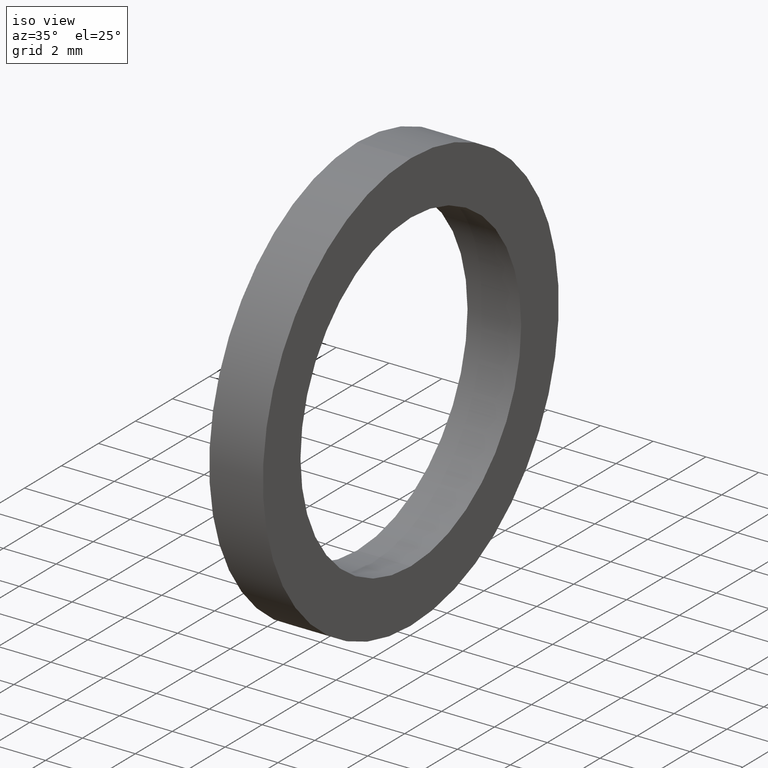
[diagram: clean part render]
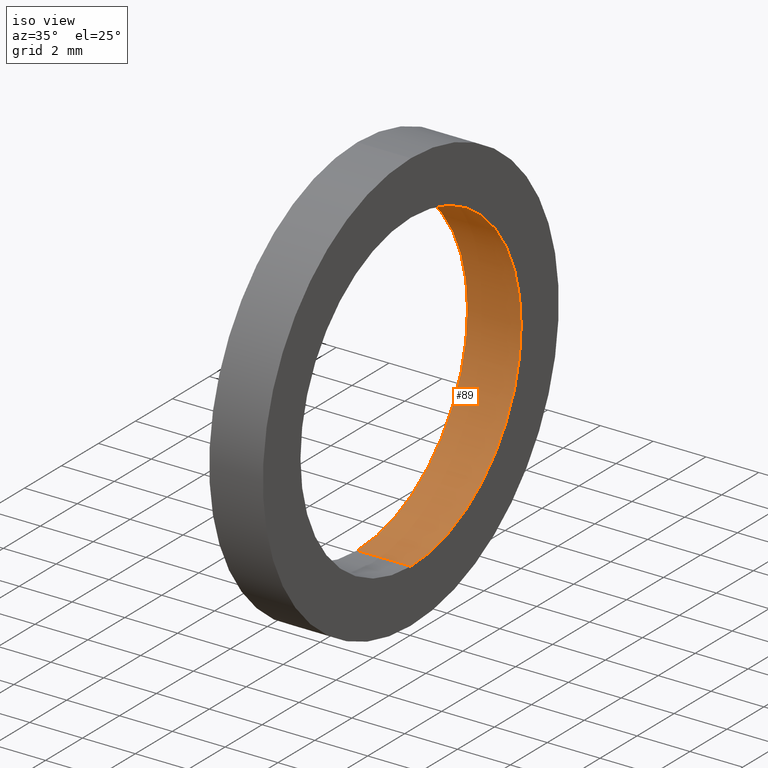
[diagram: same view with one face highlighted and labeled with its STEP entity id]
A machine part, iso view. The second image highlights one B-rep face of the part: STEP entity #89.
In plain terms, the highlighted cylindrical surface (partial cylindrical patch) has radius 5.969 mm, axis along (-1, 0, 0).
Its self-contained STEP definition (entity closure, byte-faithful):
#18 = CARTESIAN_POINT ( 'NONE',  ( 0.0000000000000000000, 0.0000000000000000000, 0.2349999999999999900 ) ) ;
#22 = VERTEX_POINT ( 'NONE', #76 ) ;
#23 = EDGE_CURVE ( 'NONE', #130, #124, #75, .T. ) ;
#52 = EDGE_CURVE ( 'NONE', #58, #124, #145, .T. ) ;
#57 = EDGE_CURVE ( 'NONE', #22, #58, #121, .T. ) ;
#58 = VERTEX_POINT ( 'NONE', #18 ) ;
#72 = DIRECTION ( 'NONE',  ( -1.000000000000000000, 0.0000000000000000000, 0.0000000000000000000 ) ) ;
#73 = VECTOR ( 'NONE', #72, 39.37007874015748100 ) ;
#74 = CARTESIAN_POINT ( 'NONE',  ( -1.721125226614714300, 2.877919977996279200E-017, -0.2349999999999999600 ) ) ;
#75 = LINE ( 'NONE', #74, #73 ) ;
#76 = CARTESIAN_POINT ( 'NONE',  ( 0.07999999999999996000, 0.0000000000000000000, 0.2349999999999999600 ) ) ;
#89 = ADVANCED_FACE ( 'NONE', ( #168 ), #167, .F. ) ;
#90 = ORIENTED_EDGE ( 'NONE', *, *, #23, .F. ) ;
#92 = ORIENTED_EDGE ( 'NONE', *, *, #52, .T. ) ;
#96 = EDGE_LOOP ( 'NONE', ( #90, #97, #98, #92 ) ) ;
#97 = ORIENTED_EDGE ( 'NONE', *, *, #99, .F. ) ;
#98 = ORIENTED_EDGE ( 'NONE', *, *, #57, .T. ) ;
#99 = EDGE_CURVE ( 'NONE', #22, #130, #113, .T. ) ;
#110 = DIRECTION ( 'NONE',  ( 0.0000000000000000000, 0.0000000000000000000, 1.000000000000000000 ) ) ;
#111 = DIRECTION ( 'NONE',  ( -1.000000000000000000, 0.0000000000000000000, 0.0000000000000000000 ) ) ;
#112 = AXIS2_PLACEMENT_3D ( 'NONE', #162, #111, #110 ) ;
#113 = CIRCLE ( 'NONE', #112, 0.2349999999999999600 ) ;
#114 = DIRECTION ( 'NONE',  ( -1.000000000000000000, 0.0000000000000000000, 0.0000000000000000000 ) ) ;
#115 = VECTOR ( 'NONE', #114, 39.37007874015748100 ) ;
#116 = CARTESIAN_POINT ( 'NONE',  ( -1.721125226614714300, 0.0000000000000000000, 0.2349999999999999600 ) ) ;
#121 = LINE ( 'NONE', #116, #115 ) ;
#124 = VERTEX_POINT ( 'NONE', #161 ) ;
#130 = VERTEX_POINT ( 'NONE', #155 ) ;
#141 = DIRECTION ( 'NONE',  ( 0.0000000000000000000, 0.0000000000000000000, 1.000000000000000000 ) ) ;
#142 = DIRECTION ( 'NONE',  ( -1.000000000000000000, 0.0000000000000000000, 0.0000000000000000000 ) ) ;
#143 = CARTESIAN_POINT ( 'NONE',  ( 0.0000000000000000000, 0.0000000000000000000, 0.0000000000000000000 ) ) ;
#144 = AXIS2_PLACEMENT_3D ( 'NONE', #143, #142, #141 ) ;
#145 = CIRCLE ( 'NONE', #144, 0.2349999999999999900 ) ;
#155 = CARTESIAN_POINT ( 'NONE',  ( 0.07999999999999996000, 2.877919977996279200E-017, -0.2349999999999999600 ) ) ;
#161 = CARTESIAN_POINT ( 'NONE',  ( 0.0000000000000000000, 2.877919977996279800E-017, -0.2350000000000000100 ) ) ;
#162 = CARTESIAN_POINT ( 'NONE',  ( 0.07999999999999996000, 0.0000000000000000000, 0.0000000000000000000 ) ) ;
#163 = DIRECTION ( 'NONE',  ( 0.0000000000000000000, 0.0000000000000000000, 1.000000000000000000 ) ) ;
#164 = DIRECTION ( 'NONE',  ( -1.000000000000000000, 0.0000000000000000000, 0.0000000000000000000 ) ) ;
#165 = CARTESIAN_POINT ( 'NONE',  ( -1.721125226614714300, 0.0000000000000000000, 0.0000000000000000000 ) ) ;
#166 = AXIS2_PLACEMENT_3D ( 'NONE', #165, #164, #163 ) ;
#167 = CYLINDRICAL_SURFACE ( 'NONE', #166, 0.2349999999999999600 ) ;
#168 = FACE_OUTER_BOUND ( 'NONE', #96, .T. ) ;